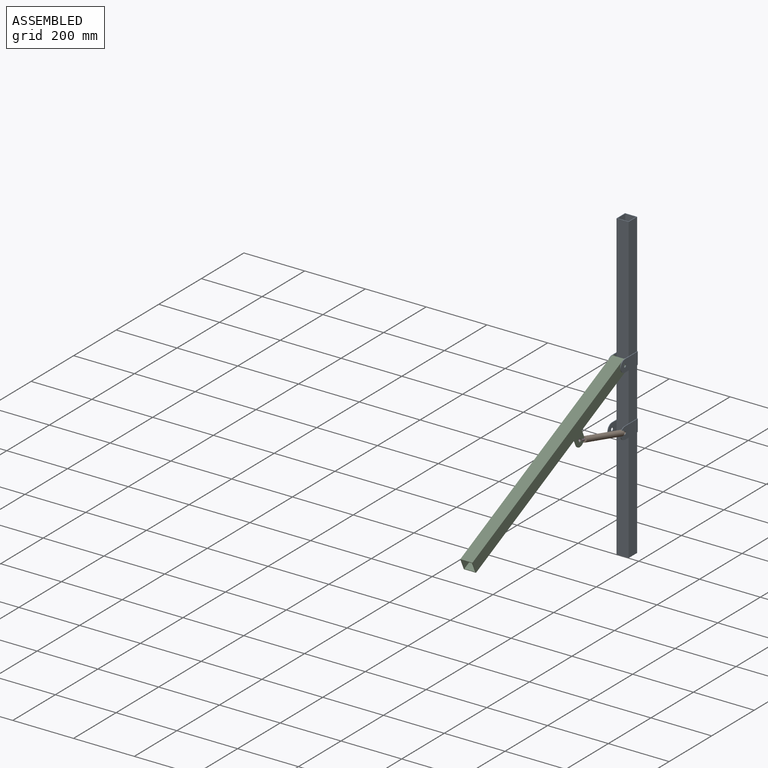
[diagram: assembled view]
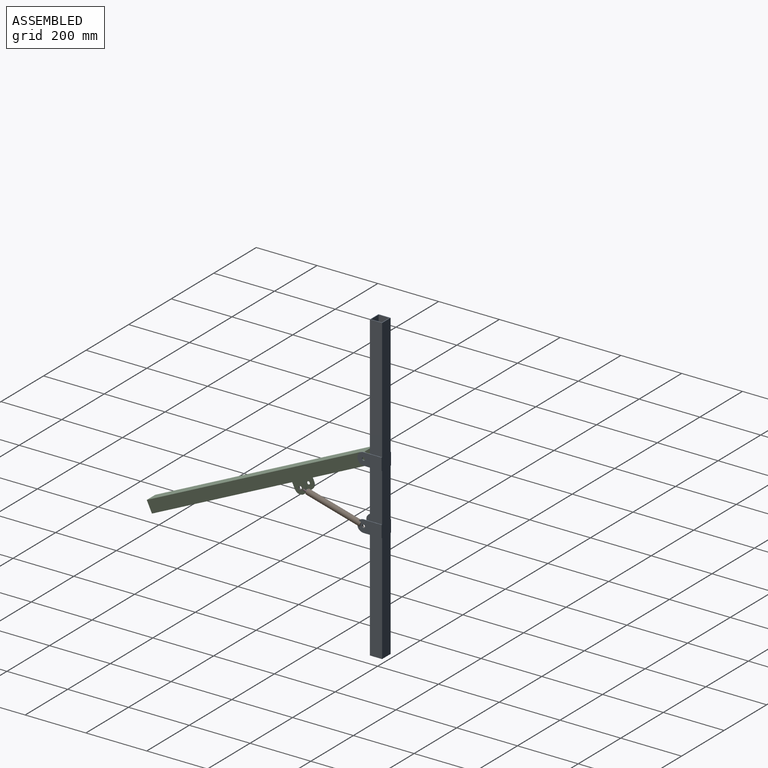
[diagram: assembled view, second angle]
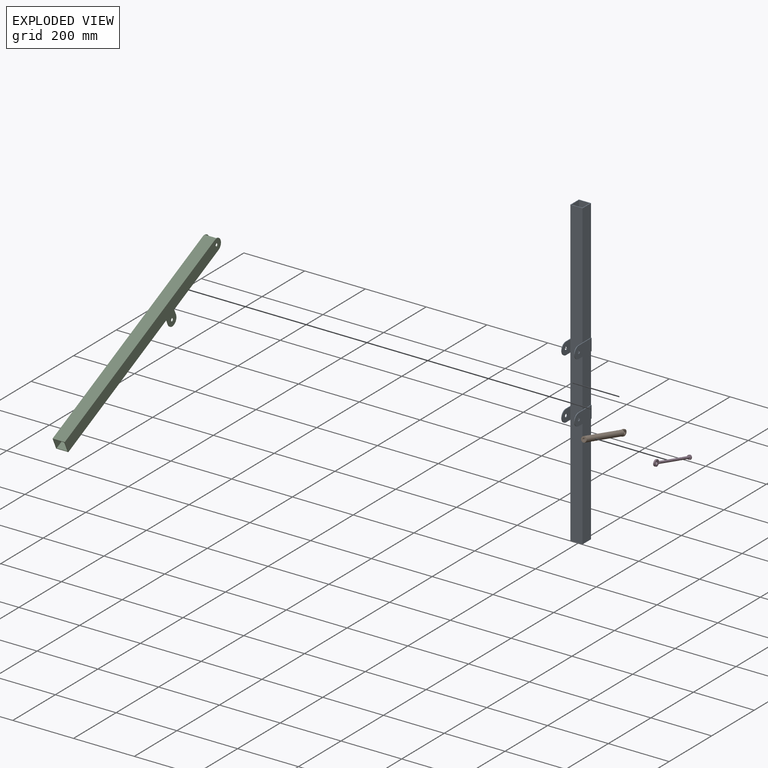
[diagram: exploded view]
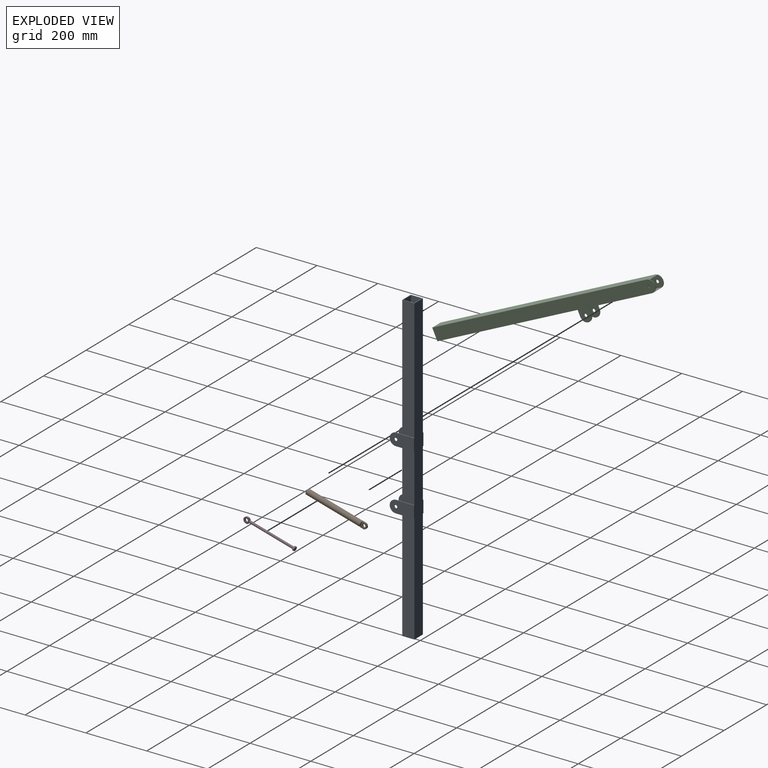
[diagram: exploded view, second angle]
ASSEMBLY  parts=4 mates=4
PART A: 38 faces, bbox 44x80x1000 mm
  f0: plane 160x40mm, normal (-1,0,0), area 6400mm2, adj f4,f6,f30,f33
  f1: plane 400x40mm, normal (-1,0,0), area 16000mm2, adj f4,f6,f12,f29
  f2: plane 160x40mm, normal (1,0,0), area 6400mm2, adj f4,f6,f16,f21
  f3: plane 400x40mm, normal (1,0,0), area 16000mm2, adj f4,f6,f12,f17
  f4: plane 1000x40mm, normal (0,-1,0), area 40000mm2, adj f0,f1,f2,f3,f5,f11,f12,f13
  f5: plane 360x40mm, normal (1,0,0), area 14400mm2, adj f4,f6,f13,f23
  f6: plane 1000x44mm, normal (0,1,0), area 40320mm2, adj f0,f1,f2,f3,f5,f11,f12,f13
  f7: plane 1000x36mm, normal (0,1,0), area 36000mm2, adj f8,f10,f12,f13
  f8: plane 1000x36mm, normal (1,0,0), area 36000mm2, adj f7,f9,f12,f13
  f9: plane 1000x36mm, normal (0,-1,0), area 36000mm2, adj f8,f10,f12,f13
  f10: plane 1000x36mm, normal (-1,0,0), area 36000mm2, adj f7,f9,f12,f13
  f11: plane 360x40mm, normal (-1,0,0), area 14400mm2, adj f4,f6,f13,f35
  f12: plane 40x40mm, normal (0,0,1), area 304mm2, adj f1,f3,f4,f6,f7,f8,f9,f10
  f13: plane 40x40mm, normal (0,0,-1), area 304mm2, adj f4,f5,f6,f7,f8,f9,f10,f11
  f14: plane 40x40mm, normal (-1,0,0), area 1349.8mm2, adj f4,f15,f16,f17,f18
  f15: cylinder r=20mm len=40mm, axis (-1,0,0), area 125.7mm2, adj f14,f16,f17,f19
  f16: plane 60x2mm, normal (0,0,-1), area 120mm2, adj f2,f6,f14,f15,f19
  f17: plane 60x2mm, normal (0,0,1), area 120mm2, adj f3,f6,f14,f15,f19
  f18: cylinder r=5mm len=10mm, axis (-1,0,0), area 62.8mm2, adj f14,f19
  f19: plane 80x40mm, normal (1,0,0), area 2949.8mm2, adj f6,f15,f16,f17,f18
  f20: plane 40x40mm, normal (-1,0,0), area 1349.8mm2, adj f4,f21,f22,f23,f24
  f21: plane 60x2mm, normal (0,0,1), area 120mm2, adj f2,f6,f20,f22,f25
  f22: cylinder r=20mm len=40mm, axis (-1,0,0), area 125.7mm2, adj f20,f21,f23,f25
  f23: plane 60x2mm, normal (0,0,-1), area 120mm2, adj f5,f6,f20,f22,f25
  f24: cylinder r=5mm len=10mm, axis (-1,0,0), area 62.8mm2, adj f20,f25
  f25: plane 80x40mm, normal (1,0,0), area 2949.8mm2, adj f6,f21,f22,f23,f24
  f26: cylinder r=5mm len=10mm, axis (1,0,0), area 62.8mm2, adj f28,f31
  f27: cylinder r=20mm len=40mm, axis (1,0,0), area 125.7mm2, adj f28,f29,f30,f31
  f28: plane 80x40mm, normal (-1,0,0), area 2949.8mm2, adj f6,f26,f27,f29,f30
  f29: plane 60x2mm, normal (0,0,1), area 120mm2, adj f1,f6,f27,f28,f31
  f30: plane 60x2mm, normal (0,0,-1), area 120mm2, adj f0,f6,f27,f28,f31
  f31: plane 40x40mm, normal (1,0,0), area 1349.8mm2, adj f4,f26,f27,f29,f30
  f32: plane 40x40mm, normal (1,0,0), area 1349.8mm2, adj f4,f33,f34,f35,f36
  f33: plane 60x2mm, normal (0,0,1), area 120mm2, adj f0,f6,f32,f34,f37
  f34: cylinder r=20mm len=40mm, axis (1,0,0), area 125.7mm2, adj f32,f33,f35,f37
  f35: plane 60x2mm, normal (0,0,-1), area 120mm2, adj f6,f11,f32,f34,f37
  f36: cylinder r=5mm len=10mm, axis (1,0,0), area 62.8mm2, adj f32,f37
  f37: plane 80x40mm, normal (-1,0,0), area 2949.8mm2, adj f6,f33,f34,f35,f36
PART B: 20 faces, bbox 204x18x20 mm
  f0: plane 2.5x0.35mm, normal (1,0,0), area 0.3mm2, adj f2,f8,f19
  f1: plane 2.5x0.35mm, normal (1,0,0), area 0.3mm2, adj f8,f13,f18
  f2: plane 20x20mm, normal (0,1,0), area 277.5mm2, adj f0,f9,f12,f14,f15,f16,f17,f18
  f3: plane 17.29x6.5mm, normal (-1,0,0), area 82.8mm2, adj f8,f13
  f4: cylinder r=7mm len=180mm, axis (1,0,0), area 7916.8mm2, adj f5,f10
  f5: plane 14x14mm, normal (-1,0,0), area 103.7mm2, adj f4,f6
  f6: cylinder r=4mm len=8mm, axis (1,0,0), area 50.3mm2, adj f5,f7
  f7: plane 18x18mm, normal (1,0,0), area 204.2mm2, adj f6,f8
  f8: cylinder r=9mm len=184mm, axis (1,0,0), area 10405mm2, adj f0,f1,f3,f7,f9,f11,f15
  f9: plane 17.29x6.5mm, normal (-1,0,0), area 82.8mm2, adj f2,f8
  f10: plane 14x14mm, normal (1,0,0), area 153.9mm2, adj f4
  f11: plane 2.5x0.35mm, normal (1,0,0), area 0.3mm2, adj f8,f13,f19
  f12: plane 9x5mm, normal (0,0,-1), area 45mm2, adj f2,f13,f16,f18
  f13: plane 20x20mm, normal (0,-1,0), area 277.5mm2, adj f1,f3,f11,f12,f14,f16,f17,f18
  f14: plane 9x5mm, normal (0,0,1), area 45mm2, adj f2,f13,f16,f19
  f15: plane 2.5x0.35mm, normal (1,0,0), area 0.3mm2, adj f2,f8,f18
  f16: cylinder r=10mm len=20mm, axis (0,-1,0), area 157.1mm2, adj f2,f12,f13,f14
  f17: cylinder r=5mm len=10mm, axis (0,-1,0), area 157.1mm2, adj f2,f13
  f18: plane 5x1mm, normal (0.71,0,-0.71), area 7.1mm2, adj f1,f2,f12,f13,f15
  f19: plane 5x1mm, normal (0.71,0,0.71), area 7.1mm2, adj f0,f2,f11,f13,f14
PART C: 22 faces, bbox 800x40x80 mm
  f0: plane 800x80mm, normal (0,-1,0), area 33099.6mm2, adj f3,f5,f7,f13,f14,f15,f16,f19
  f1: plane 40x40mm, normal (0,1,0), area 1349.8mm2, adj f3,f5,f7,f19,f21
  f2: plane 40x40mm, normal (0,-1,0), area 1349.8mm2, adj f4,f6,f7,f18,f20
  f3: plane 20x2mm, normal (1,0,0), area 40mm2, adj f0,f1,f7,f19
  f4: plane 20x2mm, normal (1,0,0), area 40mm2, adj f2,f7,f8,f18
  f5: plane 20x2mm, normal (-1,0,0), area 40mm2, adj f0,f1,f7,f19
  f6: plane 20x2mm, normal (-1,0,0), area 40mm2, adj f2,f7,f8,f18
  f7: plane 780x40mm, normal (0,0,-1), area 31040mm2, adj f0,f1,f2,f3,f4,f5,f6,f8
  f8: plane 800x80mm, normal (0,1,0), area 33099.6mm2, adj f4,f6,f7,f13,f14,f15,f17,f18
  f9: plane 800x36mm, normal (0,1,0), area 28606.3mm2, adj f11,f12,f14,f15,f16
  f10: plane 800x36mm, normal (0,-1,0), area 28606.3mm2, adj f11,f12,f14,f15,f17
  f11: plane 788.72x36mm, normal (0,0,-1), area 28393.8mm2, adj f9,f10,f14,f15
  f12: plane 788.72x36mm, normal (0,0,1), area 28393.8mm2, adj f9,f10,f14,f15
  f13: plane 780x40mm, normal (0,0,1), area 31200mm2, adj f0,f8,f14,f15
  f14: plane 40x40mm, normal (1,0,0), area 304mm2, adj f0,f7,f8,f9,f10,f11,f12,f13
  f15: cylinder r=20mm len=40mm, axis (0,-1,0), area 900.8mm2, adj f0,f7,f8,f9,f10,f11,f12,f13
  f16: cylinder r=5mm len=10mm, axis (0,-1,0), area 62.8mm2, adj f0,f9
  f17: cylinder r=5mm len=10mm, axis (0,-1,0), area 62.8mm2, adj f8,f10
  f18: cylinder r=20mm len=40mm, axis (0,1,0), area 125.7mm2, adj f2,f4,f6,f8
  f19: cylinder r=20mm len=40mm, axis (0,1,0), area 125.7mm2, adj f0,f1,f3,f5
  f20: cylinder r=5mm len=10mm, axis (0,1,0), area 62.8mm2, adj f2,f8
  f21: cylinder r=5mm len=10mm, axis (0,1,0), area 62.8mm2, adj f0,f1
PART D: 16 faces, bbox 175x14x20 mm
  f0: plane 20x20mm, normal (0,1,0), area 253.5mm2, adj f3,f7,f8,f10,f11,f12,f13,f14
  f1: plane 6.25x1.5mm, normal (-1,0,0), area 6.5mm2, adj f2,f9
  f2: cylinder r=4mm len=150mm, axis (-1,0,0), area 3769.9mm2, adj f1,f3,f6,f7,f11
  f3: plane 6.25x1.5mm, normal (-1,0,0), area 6.5mm2, adj f0,f2
  f4: cylinder r=7mm len=14mm, axis (-1,0,0), area 219.9mm2, adj f5,f6
  f5: plane 14x14mm, normal (1,0,0), area 153.9mm2, adj f4
  f6: plane 14x14mm, normal (-1,0,0), area 103.7mm2, adj f2,f4
  f7: plane 5x1.88mm, normal (1,0,0), area 6.4mm2, adj f0,f2,f9,f15
  f8: plane 5x5mm, normal (0,0,-1), area 25mm2, adj f0,f9,f12,f14
  f9: plane 20x20mm, normal (0,-1,0), area 253.5mm2, adj f1,f7,f8,f10,f11,f12,f13,f14
  f10: plane 5x5mm, normal (0,0,1), area 25mm2, adj f0,f9,f12,f15
  f11: plane 5x1.88mm, normal (1,0,0), area 6.4mm2, adj f0,f2,f9,f14
  f12: cylinder r=10mm len=20mm, axis (0,-1,0), area 157.1mm2, adj f0,f8,f9,f10
  f13: cylinder r=5mm len=10mm, axis (0,-1,0), area 157.1mm2, adj f0,f9
  f14: plane 5x5mm, normal (0.71,0,-0.71), area 35.4mm2, adj f0,f8,f9,f11
  f15: plane 5x5mm, normal (0.71,0,0.71), area 35.4mm2, adj f0,f7,f9,f10
PLACE A t=(-30.4,-12.73,-22.76)mm fixed
PLACE B rot(axis=(0.7,-0.7,0.09),169.2deg) t=(-12.9,-124.5,-123.05)mm
PLACE C rot(axis=(0.21,0.21,-0.95),92.7deg) t=(-30.4,-396.65,-104.37)mm
PLACE D rot(axis=(-0.13,0.13,0.98),91deg) t=(-12.9,-180.01,-107.8)mm
MATE revolute C.f15 <-> A.f15  axis (1,0,0) through (-10.4,-52.73,57.24)mm
MATE revolute B.f16 <-> A.f22  axis (1,0,0) through (-10.4,-52.73,-142.76)mm
MATE cylindrical D.f13 <-> C.f18  axis (1,0,0) through (-10.4,-261.98,-85.29)mm
MATE slider D.f4 <-> B.f4  axis (0,0.96,-0.26) through (-12.9,-102.87,-128.99)mm
